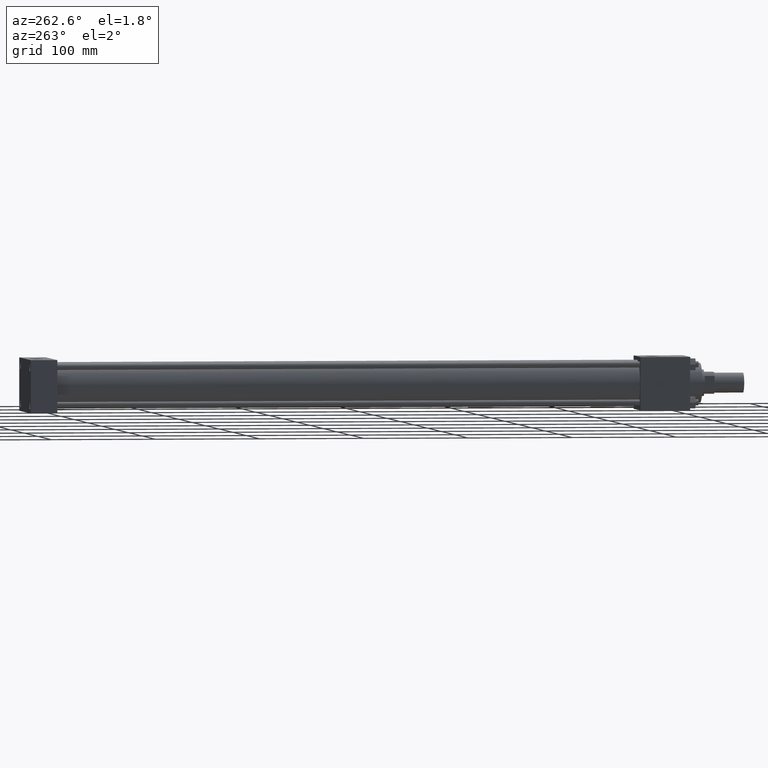
[diagram: clean part render]
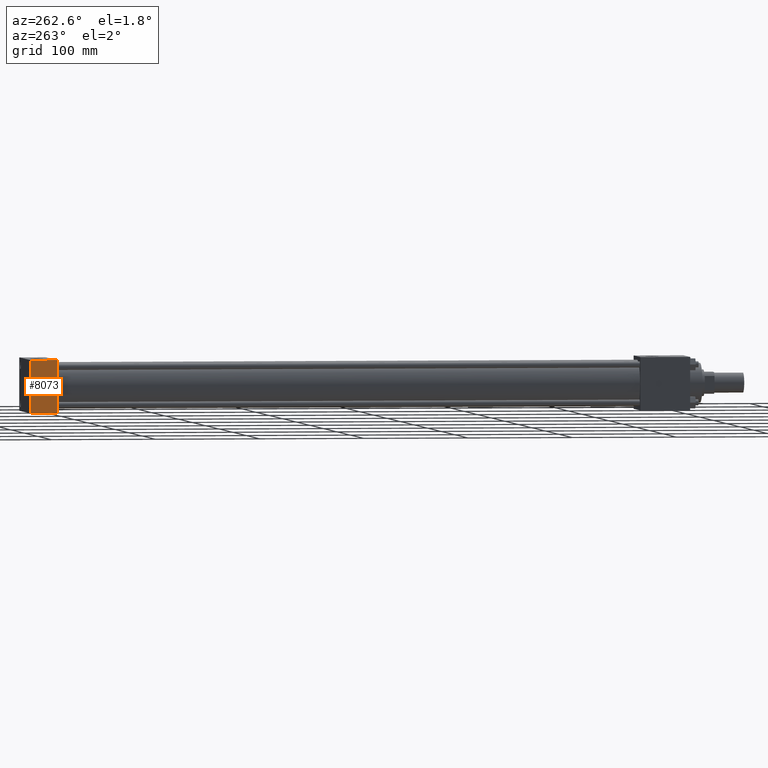
[diagram: same view with one face highlighted and labeled with its STEP entity id]
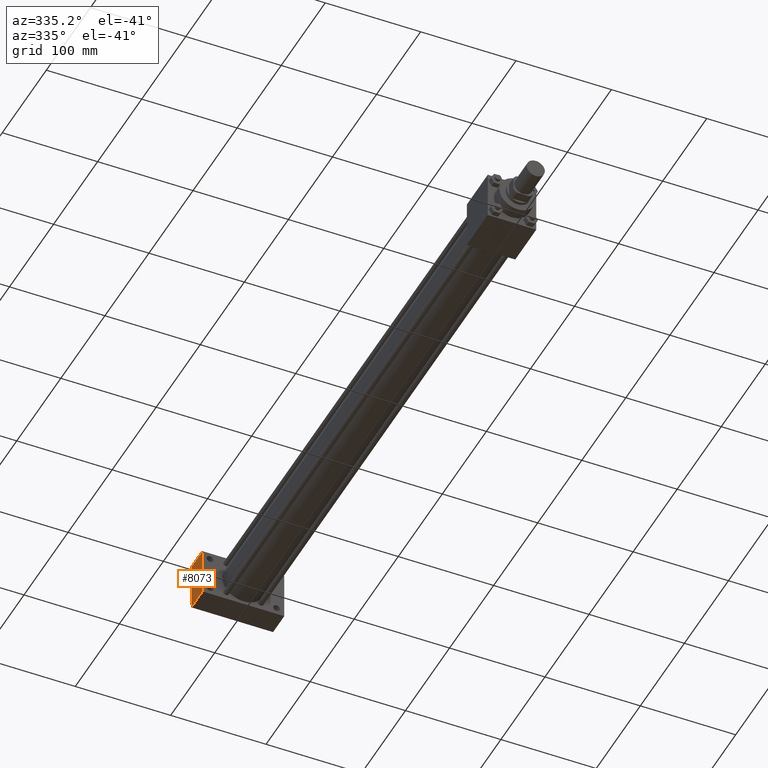
[diagram: same view with one face highlighted and labeled with its STEP entity id]
A machine part, auxiliary view. The second image highlights one B-rep face of the part: STEP entity #8073.
A second angle (auxiliary view) of the same face is appended — the face is thin or edge-on in the first view.
In plain terms, the highlighted planar face has unit normal (-1, 0, 0).
Its self-contained STEP definition (entity closure, byte-faithful):
#3447=VERTEX_POINT('',#3449);
#3449=CARTESIAN_POINT('',(-4.286250000E+001,6.350000000E+002,-2.540000000E+001));
#3463=VERTEX_POINT('',#3464);
#3464=CARTESIAN_POINT('',(-4.286250000E+001,6.350000000E+002,2.540000000E+001));
#3465=EDGE_CURVE('',#3463,#3447,#3466,.T.);
#3466=LINE('',#3467,#3468);
#3467=CARTESIAN_POINT('',(-4.286250000E+001,6.350000000E+002,2.540000000E+001));
#3468=VECTOR('',#3469,1.0E+000);
#3469=DIRECTION('',(0.0E+000,0.0E+000,-1.0E+000));
#3632=FACE_OUTER_BOUND('',#3634,.T.);
#3633=FACE_BOUND('',#3635,.T.);
#3634=EDGE_LOOP('',(#3636,#3637,#3638,#3639));
#3635=EDGE_LOOP('',(#3659));
#3636=ORIENTED_EDGE('',*,*,#3640,.T.);
#3637=ORIENTED_EDGE('',*,*,#3649,.T.);
#3638=ORIENTED_EDGE('',*,*,#3465,.F.);
#3639=ORIENTED_EDGE('',*,*,#3654,.F.);
#3640=EDGE_CURVE('',#3645,#3646,#3641,.T.);
#3641=LINE('',#3642,#3643);
#3642=CARTESIAN_POINT('',(-4.286250000E+001,6.604000000E+002,2.540000000E+001));
#3643=VECTOR('',#3644,1.0E+000);
#3644=DIRECTION('',(0.0E+000,0.0E+000,-1.0E+000));
#3645=VERTEX_POINT('',#3647);
#3646=VERTEX_POINT('',#3648);
#3647=CARTESIAN_POINT('',(-4.286250000E+001,6.604000000E+002,2.540000000E+001));
#3648=CARTESIAN_POINT('',(-4.286250000E+001,6.604000000E+002,-2.540000000E+001));
#3649=EDGE_CURVE('',#3646,#3447,#3650,.T.);
#3650=LINE('',#3651,#3652);
#3651=CARTESIAN_POINT('',(-4.286250000E+001,6.604000000E+002,-2.540000000E+001));
#3652=VECTOR('',#3653,1.0E+000);
#3653=DIRECTION('',(0.0E+000,-1.0E+000,0.0E+000));
#3654=EDGE_CURVE('',#3645,#3463,#3655,.T.);
#3655=LINE('',#3656,#3657);
#3656=CARTESIAN_POINT('',(-4.286250000E+001,6.604000000E+002,2.540000000E+001));
#3657=VECTOR('',#3658,1.0E+000);
#3658=DIRECTION('',(0.0E+000,-1.0E+000,0.0E+000));
#3659=ORIENTED_EDGE('',*,*,#3660,.T.);
#3660=EDGE_CURVE('',#3666,#3666,#3661,.T.);
#3661=CIRCLE('',#3662,2.778125000E+000);
#3662=AXIS2_PLACEMENT_3D('',#3663,#3664,#3665);
#3663=CARTESIAN_POINT('',(-4.286250000E+001,6.492875000E+002,0.000000000E+000));
#3664=DIRECTION('',(1.0E+000,0.0E+000,0.0E+000));
#3665=DIRECTION('',(0.0E+000,-1.0E+000,0.0E+000));
#3666=VERTEX_POINT('',#3667);
#3667=CARTESIAN_POINT('',(-4.286250000E+001,6.465093750E+002,0.000000000E+000));
#3668=PLANE('',#3669);
#3669=AXIS2_PLACEMENT_3D('',#3670,#3671,#3672);
#3670=CARTESIAN_POINT('',(-4.286250000E+001,6.604000000E+002,2.540000000E+001));
#3671=DIRECTION('',(-1.0E+000,0.0E+000,0.0E+000));
#3672=DIRECTION('',(0.0E+000,0.0E+000,1.0E+000));
#8073=ADVANCED_FACE('',(#3632,#3633),#3668,.T.);